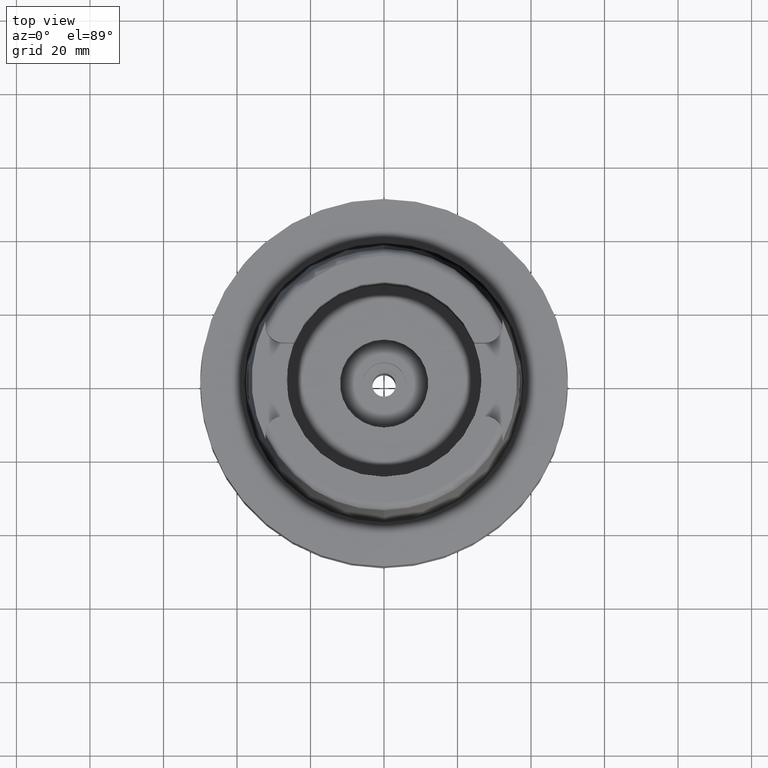
[diagram: clean part render]
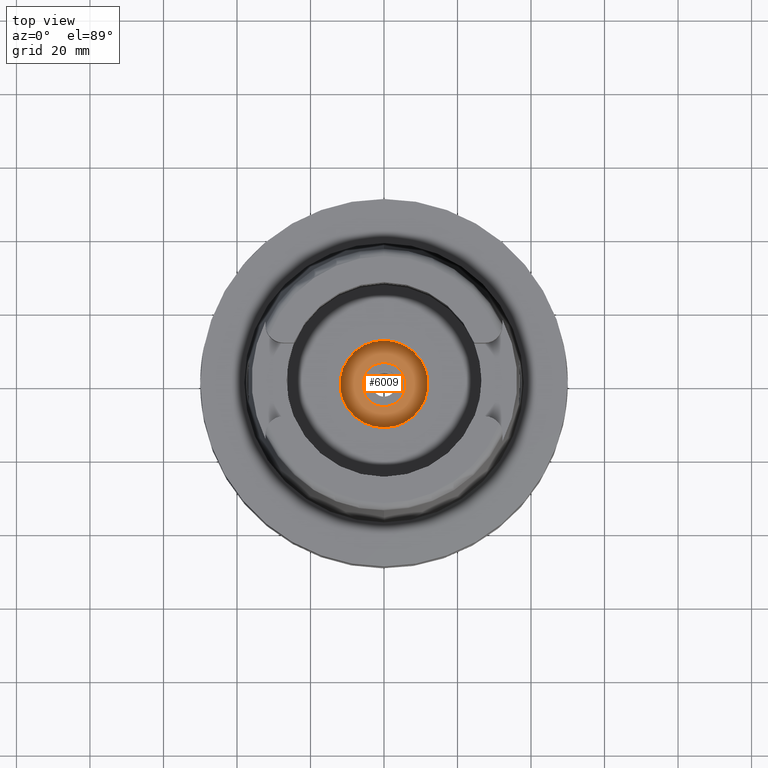
[diagram: same view with one face highlighted and labeled with its STEP entity id]
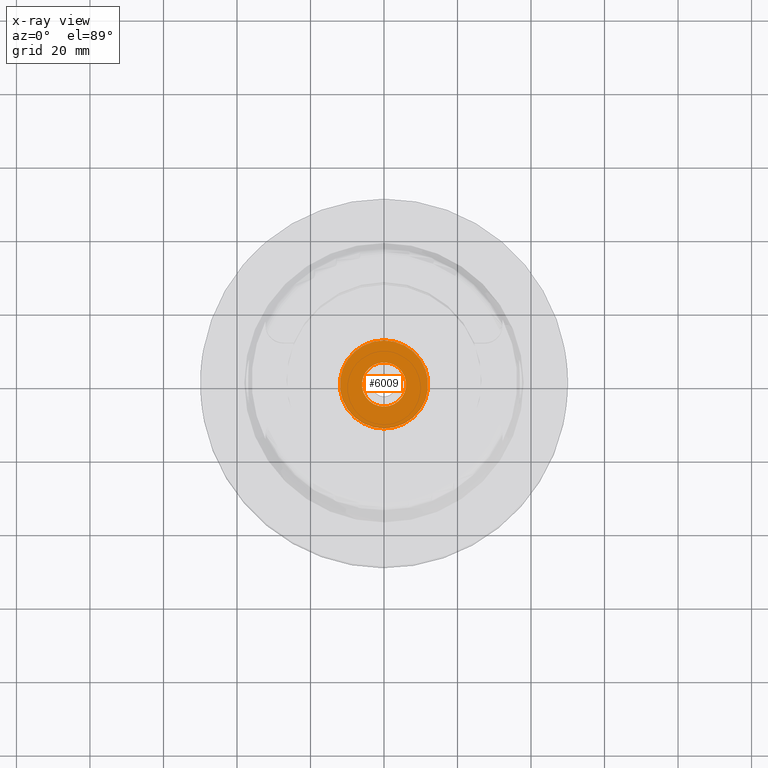
[diagram: x-ray of the same camera — body ghosted, the highlighted face saturated]
A machine part, top view. The second image highlights one B-rep face of the part: STEP entity #6009.
The next image is the same camera in x-ray: the body ghosted, the highlighted face saturated — about 0% of this face is hidden behind the body in this view.
In plain terms, the highlighted planar face has unit normal (0, 0, 1).
Its self-contained STEP definition (entity closure, byte-faithful):
#261 = DIRECTION ( 'NONE',  ( 0.0000000000000000000, 1.000000000000000000, 0.0000000000000000000 ) ) ;
#313 = CIRCLE ( 'NONE', #6132, 6.000000000000000000 ) ;
#740 = VERTEX_POINT ( 'NONE', #5142 ) ;
#1027 = CARTESIAN_POINT ( 'NONE',  ( 0.0000000000000000000, 0.0000000000000000000, -28.44999999999999929 ) ) ;
#1059 = AXIS2_PLACEMENT_3D ( 'NONE', #1370, #4281, #2410 ) ;
#1094 = DIRECTION ( 'NONE',  ( 0.0000000000000000000, -1.000000000000000000, 0.0000000000000000000 ) ) ;
#1190 = CARTESIAN_POINT ( 'NONE',  ( 0.0000000000000000000, 0.0000000000000000000, -28.44999999999999929 ) ) ;
#1370 = CARTESIAN_POINT ( 'NONE',  ( 0.0000000000000000000, 0.0000000000000000000, -28.44999999999999929 ) ) ;
#1429 = DIRECTION ( 'NONE',  ( 0.0000000000000000000, 0.0000000000000000000, -1.000000000000000000 ) ) ;
#1593 = DIRECTION ( 'NONE',  ( 0.0000000000000000000, 0.0000000000000000000, 1.000000000000000000 ) ) ;
#1844 = FACE_OUTER_BOUND ( 'NONE', #5228, .T. ) ;
#1998 = EDGE_CURVE ( 'NONE', #740, #3671, #3550, .T. ) ;
#2260 = CIRCLE ( 'NONE', #4381, 12.00000000000000000 ) ;
#2410 = DIRECTION ( 'NONE',  ( 1.000000000000000000, 0.0000000000000000000, 0.0000000000000000000 ) ) ;
#2764 = AXIS2_PLACEMENT_3D ( 'NONE', #5127, #6064, #261 ) ;
#3106 = DIRECTION ( 'NONE',  ( 0.0000000000000000000, -1.000000000000000000, 0.0000000000000000000 ) ) ;
#3230 = DIRECTION ( 'NONE',  ( 0.0000000000000000000, 1.000000000000000000, 0.0000000000000000000 ) ) ;
#3297 = CARTESIAN_POINT ( 'NONE',  ( 0.0000000000000000000, 6.000000000000000000, -28.44999999999999929 ) ) ;
#3483 = ORIENTED_EDGE ( 'NONE', *, *, #6032, .F. ) ;
#3550 = CIRCLE ( 'NONE', #4363, 12.00000000000000000 ) ;
#3671 = VERTEX_POINT ( 'NONE', #5129 ) ;
#3685 = VERTEX_POINT ( 'NONE', #3297 ) ;
#4155 = CARTESIAN_POINT ( 'NONE',  ( 0.0000000000000000000, -6.000000000000000000, -28.44999999999999929 ) ) ;
#4281 = DIRECTION ( 'NONE',  ( 0.0000000000000000000, 0.0000000000000000000, 1.000000000000000000 ) ) ;
#4363 = AXIS2_PLACEMENT_3D ( 'NONE', #1190, #5412, #3106 ) ;
#4381 = AXIS2_PLACEMENT_3D ( 'NONE', #6098, #1429, #3230 ) ;
#4684 = VERTEX_POINT ( 'NONE', #4155 ) ;
#4756 = PLANE ( 'NONE',  #1059 ) ;
#5127 = CARTESIAN_POINT ( 'NONE',  ( 0.0000000000000000000, 0.0000000000000000000, -28.44999999999999929 ) ) ;
#5129 = CARTESIAN_POINT ( 'NONE',  ( 0.0000000000000000000, 12.00000000000000000, -28.44999999999999929 ) ) ;
#5142 = CARTESIAN_POINT ( 'NONE',  ( 0.0000000000000000000, -12.00000000000000000, -28.44999999999999929 ) ) ;
#5150 = ORIENTED_EDGE ( 'NONE', *, *, #5806, .F. ) ;
#5228 = EDGE_LOOP ( 'NONE', ( #5317, #5365 ) ) ;
#5317 = ORIENTED_EDGE ( 'NONE', *, *, #5895, .F. ) ;
#5365 = ORIENTED_EDGE ( 'NONE', *, *, #1998, .F. ) ;
#5412 = DIRECTION ( 'NONE',  ( 0.0000000000000000000, 0.0000000000000000000, -1.000000000000000000 ) ) ;
#5676 = CIRCLE ( 'NONE', #2764, 6.000000000000000000 ) ;
#5689 = FACE_BOUND ( 'NONE', #5797, .T. ) ;
#5797 = EDGE_LOOP ( 'NONE', ( #5150, #3483 ) ) ;
#5806 = EDGE_CURVE ( 'NONE', #3685, #4684, #5676, .T. ) ;
#5895 = EDGE_CURVE ( 'NONE', #3671, #740, #2260, .T. ) ;
#6009 = ADVANCED_FACE ( 'NONE', ( #1844, #5689 ), #4756, .T. ) ;
#6032 = EDGE_CURVE ( 'NONE', #4684, #3685, #313, .T. ) ;
#6064 = DIRECTION ( 'NONE',  ( 0.0000000000000000000, 0.0000000000000000000, 1.000000000000000000 ) ) ;
#6098 = CARTESIAN_POINT ( 'NONE',  ( 0.0000000000000000000, 0.0000000000000000000, -28.44999999999999929 ) ) ;
#6132 = AXIS2_PLACEMENT_3D ( 'NONE', #1027, #1593, #1094 ) ;